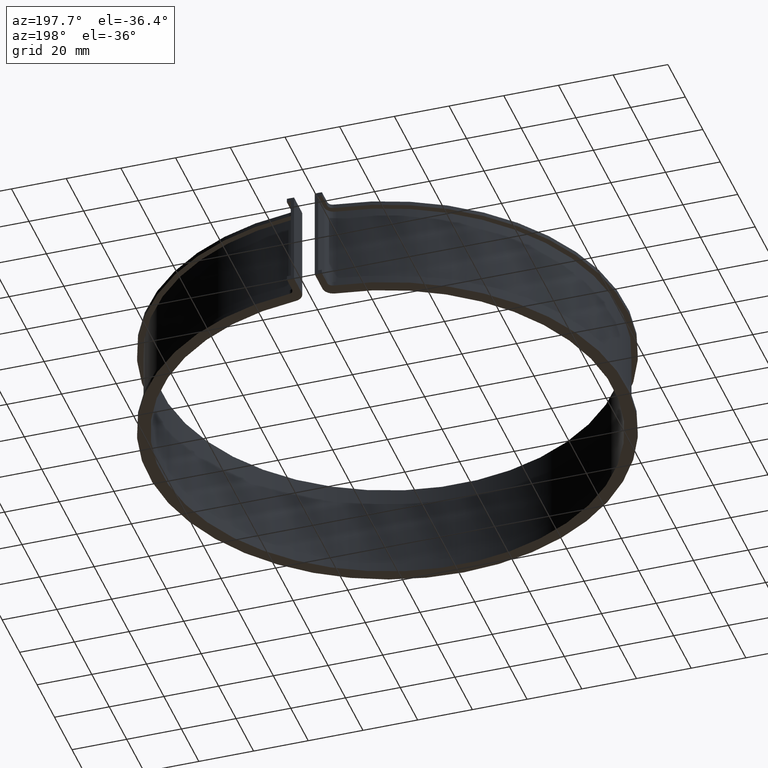
[diagram: clean part render]
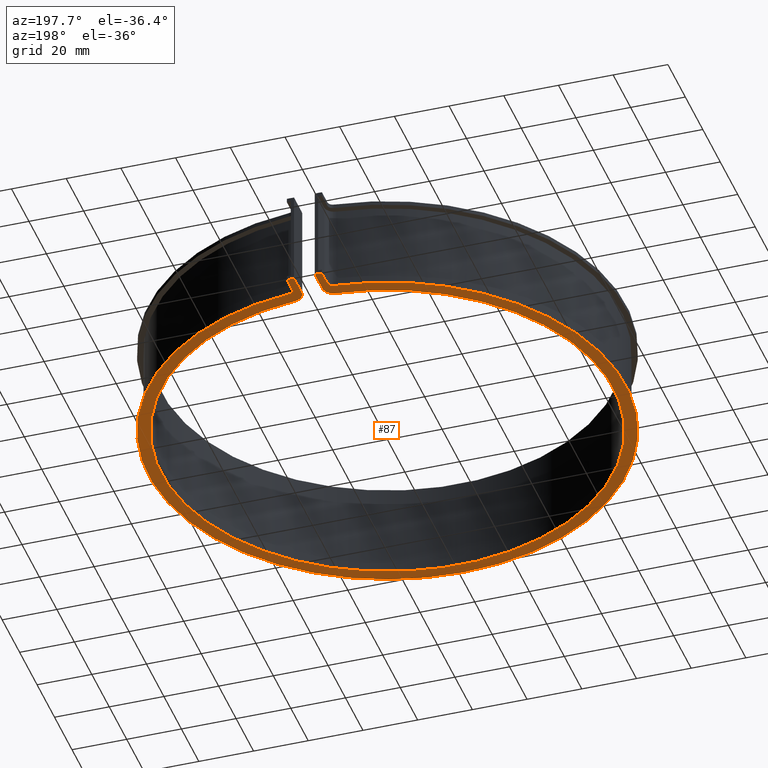
[diagram: same view with one face highlighted and labeled with its STEP entity id]
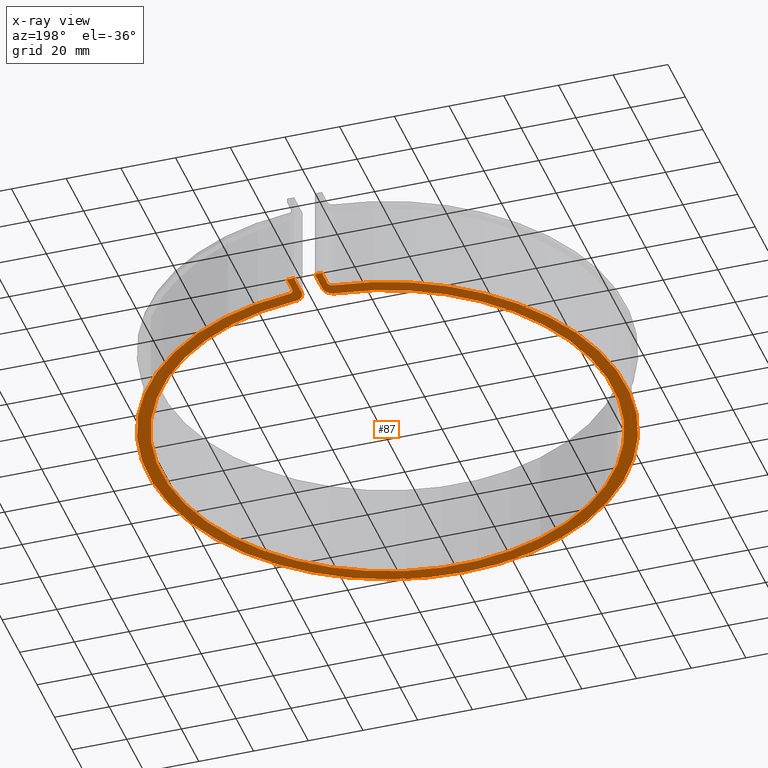
[diagram: x-ray of the same camera — body ghosted, the highlighted face saturated]
A machine part, auxiliary view. The second image highlights one B-rep face of the part: STEP entity #87.
The next image is the same camera in x-ray: the body ghosted, the highlighted face saturated — about 0% of this face is hidden behind the body in this view.
In plain terms, the highlighted planar face has unit normal (0, 0, -1).
Its self-contained STEP definition (entity closure, byte-faithful):
#87 = ADVANCED_FACE( '', ( #126 ), #127, .T. );
#126 = FACE_OUTER_BOUND( '', #178, .T. );
#127 = PLANE( '', #179 );
#178 = EDGE_LOOP( '', ( #314, #315, #316, #317, #318, #319, #320, #321, #322, #323, #324, #325 ) );
#179 = AXIS2_PLACEMENT_3D( '', #326, #327, #328 );
#314 = ORIENTED_EDGE( '', *, *, #476, .F. );
#315 = ORIENTED_EDGE( '', *, *, #475, .F. );
#316 = ORIENTED_EDGE( '', *, *, #477, .F. );
#317 = ORIENTED_EDGE( '', *, *, #431, .F. );
#318 = ORIENTED_EDGE( '', *, *, #472, .F. );
#319 = ORIENTED_EDGE( '', *, *, #461, .F. );
#320 = ORIENTED_EDGE( '', *, *, #478, .F. );
#321 = ORIENTED_EDGE( '', *, *, #479, .F. );
#322 = ORIENTED_EDGE( '', *, *, #480, .F. );
#323 = ORIENTED_EDGE( '', *, *, #481, .F. );
#324 = ORIENTED_EDGE( '', *, *, #482, .F. );
#325 = ORIENTED_EDGE( '', *, *, #437, .F. );
#326 = CARTESIAN_POINT( '', ( -8.39999999999999, 88.9040494015880, -33.5000000000000 ) );
#327 = DIRECTION( '', ( 0.000000000000000, 0.000000000000000, -1.00000000000000 ) );
#328 = DIRECTION( '', ( 0.000000000000000, -1.00000000000000, 0.000000000000000 ) );
#431 = EDGE_CURVE( '', #505, #500, #507, .T. );
#437 = EDGE_CURVE( '', #517, #519, #520, .T. );
#461 = EDGE_CURVE( '', #561, #553, #563, .T. );
#472 = EDGE_CURVE( '', #553, #505, #579, .T. );
#475 = EDGE_CURVE( '', #582, #580, #584, .T. );
#476 = EDGE_CURVE( '', #580, #517, #585, .T. );
#477 = EDGE_CURVE( '', #500, #582, #586, .T. );
#478 = EDGE_CURVE( '', #587, #561, #588, .T. );
#479 = EDGE_CURVE( '', #589, #587, #590, .T. );
#480 = EDGE_CURVE( '', #591, #589, #592, .T. );
#481 = EDGE_CURVE( '', #593, #591, #594, .T. );
#482 = EDGE_CURVE( '', #519, #593, #595, .T. );
#500 = VERTEX_POINT( '', #620 );
#505 = VERTEX_POINT( '', #626 );
#507 = CIRCLE( '', #629, 4.00000000000000 );
#517 = VERTEX_POINT( '', #643 );
#519 = VERTEX_POINT( '', #646 );
#520 = LINE( '', #647, #648 );
#553 = VERTEX_POINT( '', #693 );
#561 = VERTEX_POINT( '', #705 );
#563 = LINE( '', #708, #709 );
#579 = LINE( '', #730, #731 );
#580 = VERTEX_POINT( '', #732 );
#582 = VERTEX_POINT( '', #735 );
#584 = CIRCLE( '', #738, 4.00000000000000 );
#585 = LINE( '', #739, #740 );
#586 = CIRCLE( '', #741, 82.6000000000000 );
#587 = VERTEX_POINT( '', #742 );
#588 = LINE( '', #743, #744 );
#589 = VERTEX_POINT( '', #745 );
#590 = CIRCLE( '', #746, 2.00000000000000 );
#591 = VERTEX_POINT( '', #747 );
#592 = CIRCLE( '', #748, 87.3000000000000 );
#593 = VERTEX_POINT( '', #749 );
#594 = CIRCLE( '', #750, 2.00000000000000 );
#595 = LINE( '', #751, #752 );
#620 = CARTESIAN_POINT( '', ( 7.43972286374134, 82.2642724620520, -33.5000000000000 ) );
#626 = CARTESIAN_POINT( '', ( 3.80000000000002, 86.2480144698995, -33.5000000000000 ) );
#629 = AXIS2_PLACEMENT_3D( '', #793, #794, #795 );
#643 = CARTESIAN_POINT( '', ( -3.80000000000000, 95.1000000000000, -33.5000000000000 ) );
#646 = CARTESIAN_POINT( '', ( -6.40000000000001, 95.1000000000000, -33.5000000000000 ) );
#647 = CARTESIAN_POINT( '', ( -3.80000000000000, 95.1000000000000, -33.5000000000000 ) );
#648 = VECTOR( '', #801, 1000.00000000000 );
#693 = CARTESIAN_POINT( '', ( 3.80000000000001, 95.1000000000000, -33.5000000000000 ) );
#705 = CARTESIAN_POINT( '', ( 6.39999999999999, 95.1000000000000, -33.5000000000000 ) );
#708 = CARTESIAN_POINT( '', ( 6.39999999999999, 95.1000000000000, -33.5000000000000 ) );
#709 = VECTOR( '', #837, 1000.00000000000 );
#730 = CARTESIAN_POINT( '', ( 3.80000000000002, 95.1000000000000, -33.5000000000000 ) );
#731 = VECTOR( '', #858, 1000.00000000000 );
#732 = CARTESIAN_POINT( '', ( -3.80000000000000, 86.2480144698995, -33.5000000000000 ) );
#735 = CARTESIAN_POINT( '', ( -7.43972286374151, 82.2642724620519, -33.5000000000000 ) );
#738 = AXIS2_PLACEMENT_3D( '', #861, #862, #863 );
#739 = CARTESIAN_POINT( '', ( -3.80000000000000, 86.2480144698995, -33.5000000000000 ) );
#740 = VECTOR( '', #864, 1000.00000000000 );
#741 = AXIS2_PLACEMENT_3D( '', #865, #866, #867 );
#742 = CARTESIAN_POINT( '', ( 6.39999999999999, 88.9040494015881, -33.5000000000000 ) );
#743 = CARTESIAN_POINT( '', ( 6.39999999999999, 88.9040494015881, -33.5000000000000 ) );
#744 = VECTOR( '', #868, 1000.00000000000 );
#745 = CARTESIAN_POINT( '', ( 8.21187010078388, 86.9129172761325, -33.5000000000000 ) );
#746 = AXIS2_PLACEMENT_3D( '', #869, #870, #871 );
#747 = CARTESIAN_POINT( '', ( -8.21187010078385, 86.9129172761325, -33.5000000000000 ) );
#748 = AXIS2_PLACEMENT_3D( '', #872, #873, #874 );
#749 = CARTESIAN_POINT( '', ( -6.39999999999999, 88.9040494015880, -33.5000000000000 ) );
#750 = AXIS2_PLACEMENT_3D( '', #875, #876, #877 );
#751 = CARTESIAN_POINT( '', ( -6.39999999999999, 95.1000000000000, -33.5000000000000 ) );
#752 = VECTOR( '', #878, 1000.00000000000 );
#793 = CARTESIAN_POINT( '', ( 7.80000000000001, 86.2480144698995, -33.5000000000000 ) );
#794 = DIRECTION( '', ( 0.000000000000000, 0.000000000000000, 1.00000000000000 ) );
#795 = DIRECTION( '', ( -1.00000000000000, 0.000000000000000, 0.000000000000000 ) );
#801 = DIRECTION( '', ( -1.00000000000000, 0.000000000000000, 0.000000000000000 ) );
#837 = DIRECTION( '', ( -1.00000000000000, 0.000000000000000, 0.000000000000000 ) );
#858 = DIRECTION( '', ( -6.10365667473321E-017, -1.00000000000000, 0.000000000000000 ) );
#861 = CARTESIAN_POINT( '', ( -7.80000000000000, 86.2480144698995, -33.5000000000000 ) );
#862 = DIRECTION( '', ( 0.000000000000000, 0.000000000000000, 1.00000000000000 ) );
#863 = DIRECTION( '', ( 1.00000000000000, 0.000000000000000, 0.000000000000000 ) );
#864 = DIRECTION( '', ( 6.10365667473321E-017, 1.00000000000000, 0.000000000000000 ) );
#865 = CARTESIAN_POINT( '', ( 0.000000000000000, 0.000000000000000, -33.5000000000000 ) );
#866 = DIRECTION( '', ( 0.000000000000000, 0.000000000000000, -1.00000000000000 ) );
#867 = DIRECTION( '', ( 1.00000000000000, 0.000000000000000, 0.000000000000000 ) );
#868 = DIRECTION( '', ( 6.10365667473321E-017, 1.00000000000000, 0.000000000000000 ) );
#869 = CARTESIAN_POINT( '', ( 8.39999999999999, 88.9040494015881, -33.5000000000000 ) );
#870 = DIRECTION( '', ( 0.000000000000000, 0.000000000000000, -1.00000000000000 ) );
#871 = DIRECTION( '', ( -1.00000000000000, 0.000000000000000, 0.000000000000000 ) );
#872 = CARTESIAN_POINT( '', ( -1.73472347597681E-015, 5.55111512312578E-014, -33.5000000000000 ) );
#873 = DIRECTION( '', ( 0.000000000000000, 0.000000000000000, 1.00000000000000 ) );
#874 = DIRECTION( '', ( 1.00000000000000, 0.000000000000000, 0.000000000000000 ) );
#875 = CARTESIAN_POINT( '', ( -8.39999999999999, 88.9040494015880, -33.5000000000000 ) );
#876 = DIRECTION( '', ( 0.000000000000000, 0.000000000000000, -1.00000000000000 ) );
#877 = DIRECTION( '', ( 1.00000000000000, 0.000000000000000, 0.000000000000000 ) );
#878 = DIRECTION( '', ( -6.10365667473321E-017, -1.00000000000000, 0.000000000000000 ) );